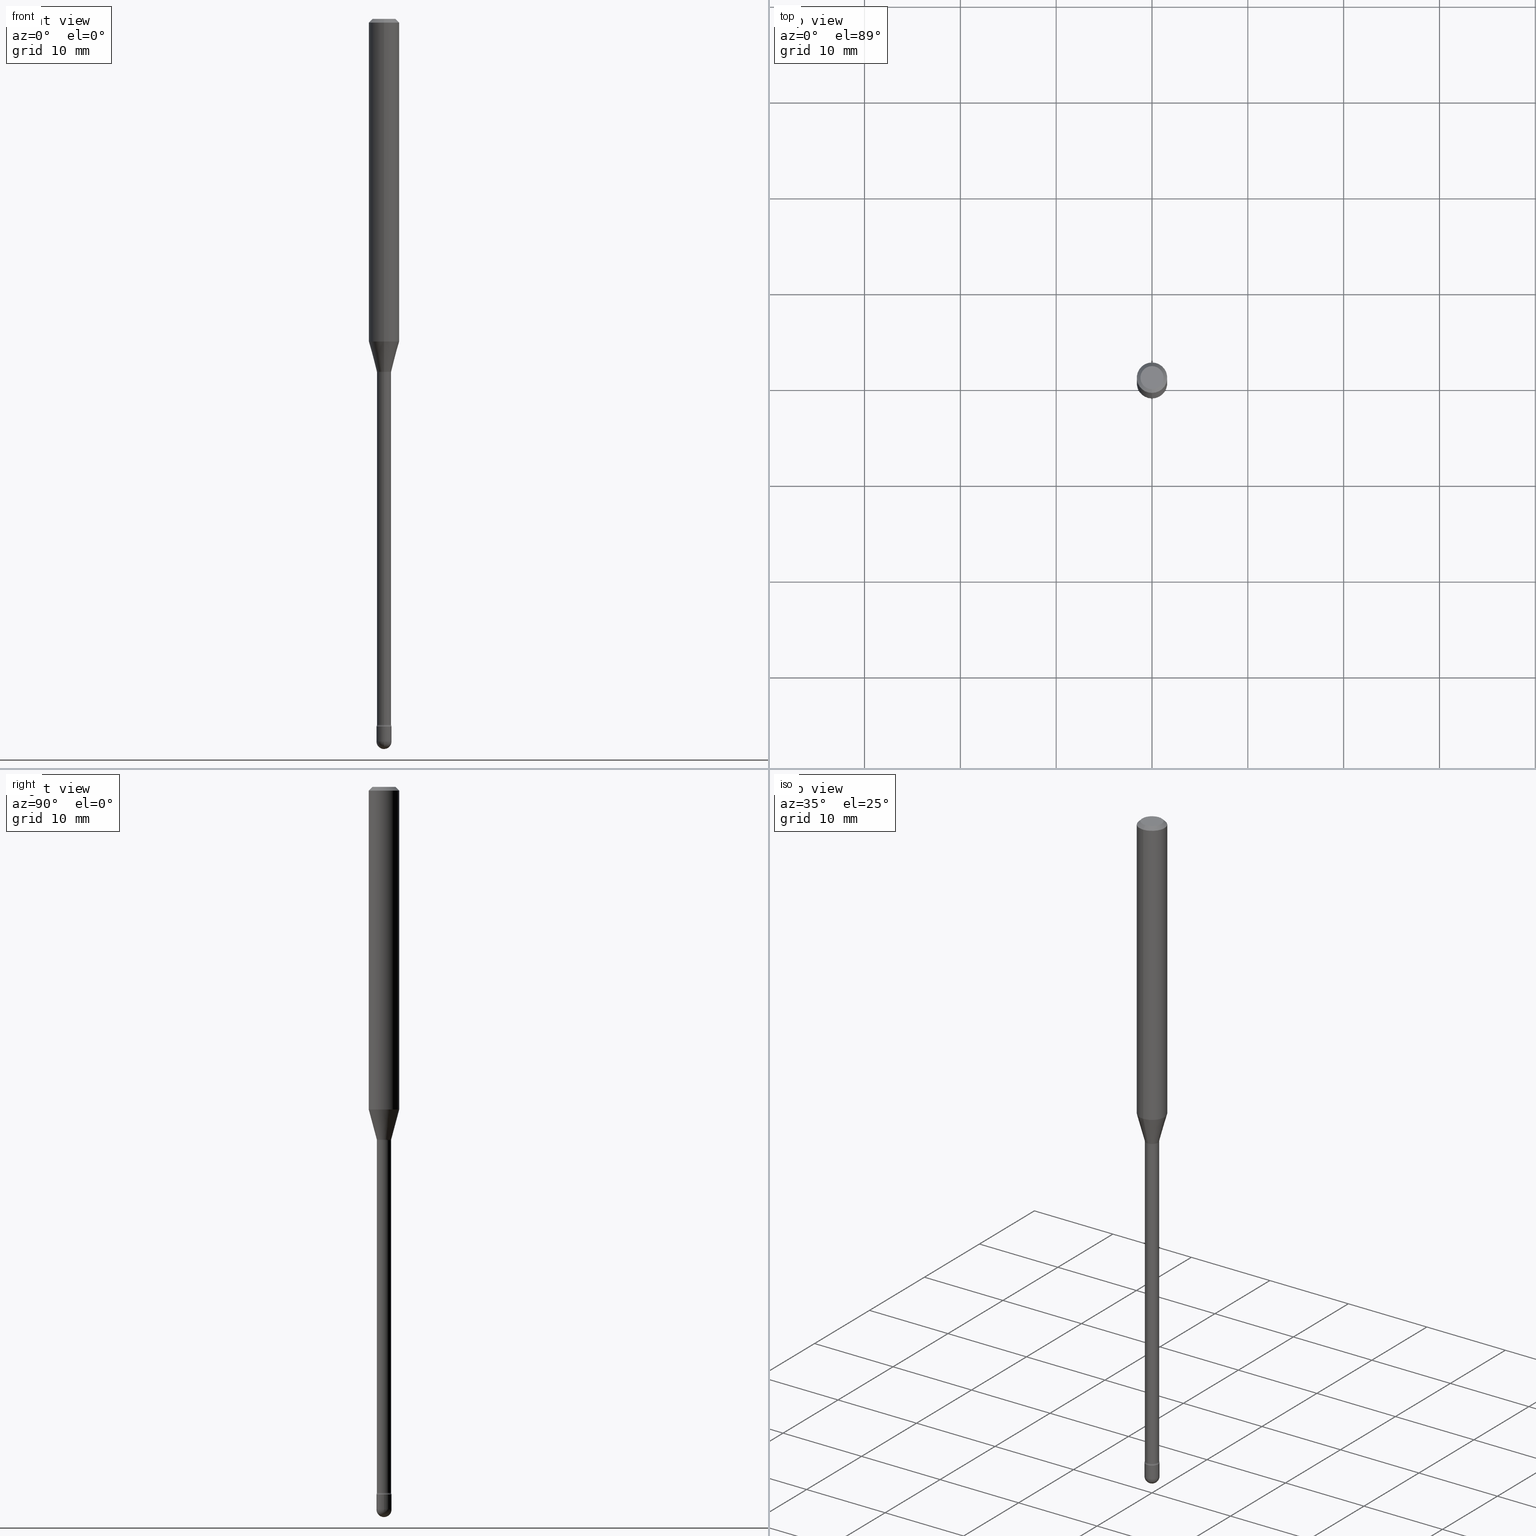
[diagram: canonical four-view strip — front | top / right | iso, engineering-drawing reading convention]
A machine part, canonical four-view strip (front | top / right | iso — engineering-drawing reading convention). The complete STEP part file that produces these views, byte-faithful:
ISO-10303-21;
HEADER;
FILE_DESCRIPTION (( 'STEP AP203' ),
    '1' );
FILE_NAME ('03980.STEP',
    '2024-04-09T21:37:29',
    ( '' ),
    ( '' ),
    'SwSTEP 2.0',
    'SolidWorks 2023',
    '' );
FILE_SCHEMA (( 'CONFIG_CONTROL_DESIGN' ));
ENDSEC;

DATA;
#1 = APPROVAL_DATE_TIME ( #4, #548 ) ;
#2 = CARTESIAN_POINT ( 'NONE',  ( -4.364351673553912750E-16, -0.06250000000000005551, -0.01499999999999986587 ) ) ;
#3 = DIRECTION ( 'NONE',  ( 6.982962677686265922E-15, 1.000000000000000000, -3.483106191921935554E-15 ) ) ;
#4 = DATE_AND_TIME ( #487, #557 ) ;
#5 = EDGE_LOOP ( 'NONE', ( #512, #316, #355, #538 ) ) ;
#6 = VERTEX_POINT ( 'NONE', #543 ) ;
#7 = DIRECTION ( 'NONE',  ( -2.445463065132452416E-29, 3.491489560357349594E-15, 1.000000000000000000 ) ) ;
#8 = AXIS2_PLACEMENT_3D ( 'NONE', #477, #259, #431 ) ;
#9 =( GEOMETRIC_REPRESENTATION_CONTEXT ( 3 ) GLOBAL_UNCERTAINTY_ASSIGNED_CONTEXT ( ( #222 ) ) GLOBAL_UNIT_ASSIGNED_CONTEXT ( ( #141, #185, #266 ) ) REPRESENTATION_CONTEXT ( 'NONE', 'WORKASPACE' ) );
#10 = SHAPE_DEFINITION_REPRESENTATION ( #555, #62 ) ;
#11 = ORIENTED_EDGE ( 'NONE', *, *, #290, .T. ) ;
#12 = FACE_OUTER_BOUND ( 'NONE', #561, .T. ) ;
#13 = ADVANCED_FACE ( 'NONE', ( #546 ), #14, .F. ) ;
#14 = TOROIDAL_SURFACE ( 'NONE', #471, 0.04415000000000000174, 0.01500000000000002547 ) ;
#15 = ORIENTED_EDGE ( 'NONE', *, *, #332, .F. ) ;
#16 = AXIS2_PLACEMENT_3D ( 'NONE', #517, #319, #34 ) ;
#17 = DIRECTION ( 'NONE',  ( -6.982962677686265922E-15, -1.000000000000000000, 3.491489560357349594E-15 ) ) ;
#18 = LOCAL_TIME ( 17, 37, 29.00000000000000000, #491 ) ;
#19 = CARTESIAN_POINT ( 'NONE',  ( -1.169113584055446105E-44, 1.669184350826100908E-30, 4.780733988912460139E-16 ) ) ;
#20 = EDGE_CURVE ( 'NONE', #480, #367, #407, .T. ) ;
#21 = DIRECTION ( 'NONE',  ( -6.982962677686265133E-15, -1.000000000000000000, 0.000000000000000000 ) ) ;
#22 = EDGE_CURVE ( 'NONE', #56, #147, #191, .T. ) ;
#23 = DIRECTION ( 'NONE',  ( -2.445463065132452416E-29, 3.491489560357349988E-15, 1.000000000000000000 ) ) ;
#24 = CIRCLE ( 'NONE', #325, 0.06250000000000000000 ) ;
#25 = EDGE_CURVE ( 'NONE', #443, #56, #116, .T. ) ;
#26 = CARTESIAN_POINT ( 'NONE',  ( -0.03099999999999999978, -1.003770392543553314E-14, -2.907000000000000473 ) ) ;
#27 = CARTESIAN_POINT ( 'NONE',  ( 3.137046178381563759E-16, 0.04414999999999005831, -2.899783525791635341 ) ) ;
#28 = CYLINDRICAL_SURFACE ( 'NONE', #253, 0.02915000000000008210 ) ;
#29 = CARTESIAN_POINT ( 'NONE',  ( 3.241549587665023205E-29, -4.628095474465936860E-15, -1.325536105567578060 ) ) ;
#30 = PERSON_AND_ORGANIZATION_ROLE ( 'classification_officer' ) ;
#31 = CIRCLE ( 'NONE', #143, 0.01500000000000002720 ) ;
#32 = DIRECTION ( 'NONE',  ( -6.982962677686265922E-15, -1.000000000000000000, 3.491489560357349988E-15 ) ) ;
#33 = CC_DESIGN_PERSON_AND_ORGANIZATION_ASSIGNMENT ( #227, #304, ( #40 ) ) ;
#34 = DIRECTION ( 'NONE',  ( -6.982962677686265922E-15, -1.000000000000000000, 3.491489560357350383E-15 ) ) ;
#35 = FACE_OUTER_BOUND ( 'NONE', #441, .T. ) ;
#36 = ORIENTED_EDGE ( 'NONE', *, *, #128, .F. ) ;
#37 = COORDINATED_UNIVERSAL_TIME_OFFSET ( 5, 0, .BEHIND. ) ;
#38 = ORIENTED_EDGE ( 'NONE', *, *, #87, .T. ) ;
#39 = EDGE_CURVE ( 'NONE', #443, #6, #286, .T. ) ;
#40 = PRODUCT_DEFINITION_FORMATION_WITH_SPECIFIED_SOURCE ( 'ANY', '', #63, .NOT_KNOWN. ) ;
#41 = DIRECTION ( 'NONE',  ( 2.445463065132452416E-29, -3.491489560357349594E-15, -1.000000000000000000 ) ) ;
#42 = DIRECTION ( 'NONE',  ( -2.445463065132452416E-29, 3.491489560357349594E-15, 1.000000000000000000 ) ) ;
#43 = PERSON_AND_ORGANIZATION ( #76, #239 ) ;
#44 = DESIGN_CONTEXT ( 'detailed design', #388, 'design' ) ;
#45 = APPLICATION_CONTEXT ( 'configuration controlled 3d designs of mechanical parts and assemblies' ) ;
#46 = ORIENTED_EDGE ( 'NONE', *, *, #375, .T. ) ;
#47 = SPHERICAL_SURFACE ( 'NONE', #68, 0.03099999999999987488 ) ;
#48 = DIRECTION ( 'NONE',  ( 0.000000000000000000, 0.000000000000000000, 1.000000000000000000 ) ) ;
#49 = ORIENTED_EDGE ( 'NONE', *, *, #552, .F. ) ;
#50 = DIRECTION ( 'NONE',  ( 6.982962677686265922E-15, 1.000000000000000000, 0.000000000000000000 ) ) ;
#51 = AXIS2_PLACEMENT_3D ( 'NONE', #92, #436, #179 ) ;
#52 = ORIENTED_EDGE ( 'NONE', *, *, #122, .F. ) ;
#53 = ORIENTED_EDGE ( 'NONE', *, *, #122, .T. ) ;
#54 = LENGTH_MEASURE_WITH_UNIT ( LENGTH_MEASURE( 0.02539999999999999897 ), #172 );
#55 = EDGE_CURVE ( 'NONE', #280, #57, #354, .T. ) ;
#56 = VERTEX_POINT ( 'NONE', #160 ) ;
#57 = VERTEX_POINT ( 'NONE', #502 ) ;
#58 = ORIENTED_EDGE ( 'NONE', *, *, #20, .F. ) ;
#59 = DIRECTION ( 'NONE',  ( -6.982962677686265922E-15, -1.000000000000000000, 0.000000000000000000 ) ) ;
#60 = CARTESIAN_POINT ( 'NONE',  ( 4.440892098500947623E-16, 0.06249999999999535788, -1.325536105567578282 ) ) ;
#61 = AXIS2_PLACEMENT_3D ( 'NONE', #465, #163, #91 ) ;
#62 = ADVANCED_BREP_SHAPE_REPRESENTATION ( '03980', ( #481, #299, #531 ), #9 ) ;
#63 = PRODUCT ( '03980', '03980', '', ( #103 ) ) ;
#64 = DIRECTION ( 'NONE',  ( -6.982962677686265922E-15, -1.000000000000000000, 3.491489560357349594E-15 ) ) ;
#65 = ADVANCED_FACE ( 'NONE', ( #118 ), #114, .F. ) ;
#66 = CARTESIAN_POINT ( 'NONE',  ( 3.550750714246292471E-29, -5.069554812331978969E-15, -1.451974787463811145 ) ) ;
#67 = CARTESIAN_POINT ( 'NONE',  ( 7.108977819580192437E-29, -1.014973625201702565E-14, -2.907000000000000473 ) ) ;
#68 = AXIS2_PLACEMENT_3D ( 'NONE', #224, #444, #145 ) ;
#69 = ORIENTED_EDGE ( 'NONE', *, *, #475, .T. ) ;
#70 = FACE_OUTER_BOUND ( 'NONE', #196, .T. ) ;
#71 = FACE_OUTER_BOUND ( 'NONE', #313, .T. ) ;
#72 = DIRECTION ( 'NONE',  ( -2.445468806185136597E-29, 3.491481338843145583E-15, 1.000000000000000000 ) ) ;
#73 = CYLINDRICAL_SURFACE ( 'NONE', #16, 0.02915000000000008210 ) ;
#74 = DIRECTION ( 'NONE',  ( -7.105427357601001070E-15, -1.000000000000000000, 0.000000000000000000 ) ) ;
#75 = DIRECTION ( 'NONE',  ( -2.445463065132451856E-29, 3.491489560357349988E-15, 1.000000000000000000 ) ) ;
#76 = PERSON ( 'UNSPECIFIED', 'UNSPECIFIED', 'UNSPECIFIED', ('UNSPECIFIED'), ('UNSPECIFIED'), ('UNSPECIFIED') ) ;
#77 = EDGE_CURVE ( 'NONE', #358, #246, #79, .T. ) ;
#78 = FACE_OUTER_BOUND ( 'NONE', #321, .T. ) ;
#79 = CIRCLE ( 'NONE', #401, 0.03099999999999999978 ) ;
#80 = CALENDAR_DATE ( 2024, 9, 4 ) ;
#81 = TOROIDAL_SURFACE ( 'NONE', #8, 0.04415000000000018215, 0.01500000000000001506 ) ;
#82 = APPROVAL_PERSON_ORGANIZATION ( #468, #548, #466 ) ;
#83 = CYLINDRICAL_SURFACE ( 'NONE', #377, 0.03099999999999999978 ) ;
#84 = EDGE_CURVE ( 'NONE', #480, #281, #278, .T. ) ;
#85 = CARTESIAN_POINT ( 'NONE',  ( -2.202682480855579631E-16, -0.03100000000001030404, -2.969000000000001194 ) ) ;
#86 = EDGE_LOOP ( 'NONE', ( #495, #298, #271, #110 ) ) ;
#87 = EDGE_CURVE ( 'NONE', #221, #190, #306, .T. ) ;
#88 = CARTESIAN_POINT ( 'NONE',  ( 2.071232074741406617E-16, 0.02914999999999492650, -1.451974787463811145 ) ) ;
#89 = ORIENTED_EDGE ( 'NONE', *, *, #25, .T. ) ;
#90 = VECTOR ( 'NONE', #420, 39.37007874015748143 ) ;
#91 = DIRECTION ( 'NONE',  ( -6.982962677686266711E-15, -1.000000000000000000, 0.000000000000000000 ) ) ;
#92 = CARTESIAN_POINT ( 'NONE',  ( 3.550750714246292471E-29, -5.069554812331978969E-15, -1.451974787463811145 ) ) ;
#93 = DATE_AND_TIME ( #390, #524 ) ;
#94 = CARTESIAN_POINT ( 'NONE',  ( 3.541256728016026823E-29, -5.055999852422020847E-15, -1.448092501787273223 ) ) ;
#95 = ADVANCED_FACE ( 'NONE', ( #556 ), #275, .T. ) ;
#96 = APPLICATION_PROTOCOL_DEFINITION ( 'international standard', 'config_control_design', 1994, #388 ) ;
#97 = FACE_OUTER_BOUND ( 'NONE', #5, .T. ) ;
#98 = ORIENTED_EDGE ( 'NONE', *, *, #287, .T. ) ;
#99 = EDGE_CURVE ( 'NONE', #6, #478, #380, .T. ) ;
#100 = ORIENTED_EDGE ( 'NONE', *, *, #396, .F. ) ;
#101 = CIRCLE ( 'NONE', #167, 0.03099999999999999978 ) ;
#102 = ORIENTED_EDGE ( 'NONE', *, *, #302, .T. ) ;
#103 = MECHANICAL_CONTEXT ( 'NONE', #45, 'mechanical' ) ;
#104 = EDGE_LOOP ( 'NONE', ( #488, #520, #36, #328 ) ) ;
#105 = VERTEX_POINT ( 'NONE', #245 ) ;
#106 = EDGE_LOOP ( 'NONE', ( #132, #416 ) ) ;
#107 = CARTESIAN_POINT ( 'NONE',  ( 7.260596885563672914E-29, -1.036620809502530155E-14, -2.969000000000001194 ) ) ;
#108 = EDGE_CURVE ( 'NONE', #105, #280, #223, .T. ) ;
#109 = DIRECTION ( 'NONE',  ( 1.000000000000000000, -6.982962677686238312E-15, 0.000000000000000000 ) ) ;
#110 = ORIENTED_EDGE ( 'NONE', *, *, #235, .T. ) ;
#111 = ORIENTED_EDGE ( 'NONE', *, *, #240, .F. ) ;
#112 = FACE_OUTER_BOUND ( 'NONE', #330, .T. ) ;
#113 = EDGE_CURVE ( 'NONE', #367, #480, #175, .T. ) ;
#114 = TOROIDAL_SURFACE ( 'NONE', #522, 0.04415000000000018215, 0.01500000000000001506 ) ;
#115 = CIRCLE ( 'NONE', #421, 0.03099999999999999978 ) ;
#116 = LINE ( 'NONE', #408, #331 ) ;
#117 = LOCAL_TIME ( 17, 37, 29.00000000000000000, #37 ) ;
#118 = FACE_OUTER_BOUND ( 'NONE', #277, .T. ) ;
#119 = DIRECTION ( 'NONE',  ( 2.445463065132451856E-29, -3.491489560357349988E-15, -1.000000000000000000 ) ) ;
#120 = CARTESIAN_POINT ( 'NONE',  ( 2.023511110287819099E-45, -2.889129656123721198E-31, -8.274664154962072585E-17 ) ) ;
#121 = AXIS2_PLACEMENT_3D ( 'NONE', #285, #554, #64 ) ;
#122 = EDGE_CURVE ( 'NONE', #507, #190, #303, .T. ) ;
#123 = CARTESIAN_POINT ( 'NONE',  ( 0.03099999999999999978, -1.036620809502529840E-14, -2.907000000000000473 ) ) ;
#124 = DIRECTION ( 'NONE',  ( 1.000000000000000000, -7.105427357601001070E-15, 4.926315609226592758E-29 ) ) ;
#125 = DIRECTION ( 'NONE',  ( 6.982962677686265922E-15, 1.000000000000000000, -3.483106191921935554E-15 ) ) ;
#126 = SECURITY_CLASSIFICATION_LEVEL ( 'unclassified' ) ;
#127 = DATE_AND_TIME ( #352, #371 ) ;
#128 = EDGE_CURVE ( 'NONE', #56, #478, #294, .T. ) ;
#129 = CARTESIAN_POINT ( 'NONE',  ( 3.316907271900976096E-16, 0.04749999999999999362, 3.181762455383862016E-17 ) ) ;
#130 = VECTOR ( 'NONE', #297, 39.37007874015748143 ) ;
#131 = CIRCLE ( 'NONE', #347, 0.01500000000000002720 ) ;
#132 = ORIENTED_EDGE ( 'NONE', *, *, #20, .T. ) ;
#133 = PERSON_AND_ORGANIZATION_ROLE ( 'creator' ) ;
#134 = DIRECTION ( 'NONE',  ( -2.445468806185136877E-29, 3.491481338843145188E-15, 1.000000000000000000 ) ) ;
#135 = ADVANCED_FACE ( 'NONE', ( #515 ), #151, .T. ) ;
#136 = APPROVAL_STATUS ( 'not_yet_approved' ) ;
#137 = CC_DESIGN_PERSON_AND_ORGANIZATION_ASSIGNMENT ( #174, #133, ( #537 ) ) ;
#138 = DIRECTION ( 'NONE',  ( -2.445463065132452416E-29, 3.491489560357349988E-15, 1.000000000000000000 ) ) ;
#139 = COORDINATED_UNIVERSAL_TIME_OFFSET ( 5, 0, .BEHIND. ) ;
#140 = CARTESIAN_POINT ( 'NONE',  ( 0.000000000000000000, 0.000000000000000000, 0.000000000000000000 ) ) ;
#141 =( CONVERSION_BASED_UNIT ( 'INCH', #54 ) LENGTH_UNIT ( ) NAMED_UNIT ( #564 ) );
#142 = ADVANCED_FACE ( 'NONE', ( #71 ), #210, .T. ) ;
#143 = AXIS2_PLACEMENT_3D ( 'NONE', #168, #124, #219 ) ;
#144 = FACE_OUTER_BOUND ( 'NONE', #395, .T. ) ;
#145 = DIRECTION ( 'NONE',  ( 6.982962677686265922E-15, 1.000000000000000000, 0.000000000000000000 ) ) ;
#146 = PERSON_AND_ORGANIZATION ( #76, #239 ) ;
#147 = VERTEX_POINT ( 'NONE', #2 ) ;
#148 = CARTESIAN_POINT ( 'NONE',  ( -3.773273898774340269E-16, -0.04749999999999999362, 8.309911256735337198E-17 ) ) ;
#149 = APPLICATION_PROTOCOL_DEFINITION ( 'international standard', 'config_control_design', 1994, #45 ) ;
#150 = DIRECTION ( 'NONE',  ( -2.445463065132452416E-29, 3.491489560357349594E-15, 1.000000000000000000 ) ) ;
#151 = CONICAL_SURFACE ( 'NONE', #457, 0.02966111260566397720, 0.2617993877991495744 ) ;
#152 = EDGE_LOOP ( 'NONE', ( #236, #214, #489, #333 ) ) ;
#153 = CIRCLE ( 'NONE', #61, 0.01500000000000001159 ) ;
#154 = APPROVAL_PERSON_ORGANIZATION ( #442, #429, #392 ) ;
#155 = EDGE_LOOP ( 'NONE', ( #257, #156, #362, #52, #11 ) ) ;
#156 = ORIENTED_EDGE ( 'NONE', *, *, #332, .T. ) ;
#157 = DIRECTION ( 'NONE',  ( -2.445463065132452416E-29, 3.491489560357349594E-15, 1.000000000000000000 ) ) ;
#158 = DIRECTION ( 'NONE',  ( -6.982962677686266711E-15, -1.000000000000000000, 3.491489560357349988E-15 ) ) ;
#159 = CONICAL_SURFACE ( 'NONE', #565, 0.02966111260566397720, 0.2617993877991495744 ) ;
#160 = CARTESIAN_POINT ( 'NONE',  ( -4.364351673553594247E-16, -0.06250000000000464906, -1.325536105567577838 ) ) ;
#161 = DIRECTION ( 'NONE',  ( 1.000000000000000000, -6.982962677686238312E-15, 0.000000000000000000 ) ) ;
#162 = EDGE_CURVE ( 'NONE', #105, #428, #540, .T. ) ;
#163 = DIRECTION ( 'NONE',  ( -1.000000000000000000, 6.982962677686265922E-15, -4.883557194083112340E-29 ) ) ;
#164 = ORIENTED_EDGE ( 'NONE', *, *, #552, .T. ) ;
#165 = DIRECTION ( 'NONE',  ( -2.445463065132452416E-29, 3.491489560357349988E-15, 1.000000000000000000 ) ) ;
#166 = AXIS2_PLACEMENT_3D ( 'NONE', #67, #376, #435 ) ;
#167 = AXIS2_PLACEMENT_3D ( 'NONE', #525, #312, #426 ) ;
#168 = CARTESIAN_POINT ( 'NONE',  ( 3.137046178381196446E-16, 0.04414999999999492941, -1.451974787463811367 ) ) ;
#169 = DIRECTION ( 'NONE',  ( -6.982962677686265133E-15, -1.000000000000000000, 0.000000000000000000 ) ) ;
#170 = CARTESIAN_POINT ( 'NONE',  ( 7.108977819580192437E-29, -1.014973625201702565E-14, -2.907000000000000473 ) ) ;
#171 = FACE_OUTER_BOUND ( 'NONE', #106, .T. ) ;
#172 =( LENGTH_UNIT ( ) NAMED_UNIT ( * ) SI_UNIT ( $, .METRE. ) );
#173 = ADVANCED_FACE ( 'NONE', ( #78 ), #476, .F. ) ;
#174 = PERSON_AND_ORGANIZATION ( #76, #239 ) ;
#175 = CIRCLE ( 'NONE', #496, 0.04749999999999999362 ) ;
#176 = AXIS2_PLACEMENT_3D ( 'NONE', #19, #198, #267 ) ;
#177 = DIRECTION ( 'NONE',  ( -1.000000000000000000, 6.982962677686265922E-15, -4.883557194083112340E-29 ) ) ;
#178 = DIRECTION ( 'NONE',  ( -2.445468806185136877E-29, 3.491481338843145188E-15, 1.000000000000000000 ) ) ;
#179 = DIRECTION ( 'NONE',  ( -6.982962677686266711E-15, -1.000000000000000000, 0.000000000000000000 ) ) ;
#180 = ORIENTED_EDGE ( 'NONE', *, *, #204, .F. ) ;
#181 = CC_DESIGN_DATE_AND_TIME_ASSIGNMENT ( #530, #438, ( #537 ) ) ;
#182 = AXIS2_PLACEMENT_3D ( 'NONE', #202, #334, #344 ) ;
#183 = ORIENTED_EDGE ( 'NONE', *, *, #108, .F. ) ;
#184 = LINE ( 'NONE', #393, #433 ) ;
#185 =( NAMED_UNIT ( * ) PLANE_ANGLE_UNIT ( ) SI_UNIT ( $, .RADIAN. ) );
#186 = ADVANCED_FACE ( 'NONE', ( #553 ), #509, .T. ) ;
#187 = ORIENTED_EDGE ( 'NONE', *, *, #547, .T. ) ;
#188 = DIRECTION ( 'NONE',  ( -6.982962677686265133E-15, -1.000000000000000000, 0.000000000000000000 ) ) ;
#189 = ORIENTED_EDGE ( 'NONE', *, *, #99, .F. ) ;
#190 = VERTEX_POINT ( 'NONE', #123 ) ;
#191 = LINE ( 'NONE', #368, #217 ) ;
#192 = AXIS2_PLACEMENT_3D ( 'NONE', #549, #197, #158 ) ;
#193 = ORIENTED_EDGE ( 'NONE', *, *, #162, .T. ) ;
#194 = AXIS2_PLACEMENT_3D ( 'NONE', #463, #72, #409 ) ;
#195 = AXIS2_PLACEMENT_3D ( 'NONE', #454, #201, #470 ) ;
#196 = EDGE_LOOP ( 'NONE', ( #203, #366, #225, #357 ) ) ;
#197 = DIRECTION ( 'NONE',  ( -2.445463065132452416E-29, 3.491489560357349594E-15, 1.000000000000000000 ) ) ;
#198 = DIRECTION ( 'NONE',  ( -2.445463065132452416E-29, 3.491489560357349594E-15, 1.000000000000000000 ) ) ;
#199 = DIRECTION ( 'NONE',  ( -2.445463065132452416E-29, 3.491489560357349594E-15, 1.000000000000000000 ) ) ;
#200 = ADVANCED_FACE ( 'NONE', ( #171 ), #301, .F. ) ;
#201 = DIRECTION ( 'NONE',  ( -2.445463065132452416E-29, 3.491489560357349594E-15, 1.000000000000000000 ) ) ;
#202 = CARTESIAN_POINT ( 'NONE',  ( 7.108961130340038725E-29, -1.014976015195881761E-14, -2.907000000000000473 ) ) ;
#203 = ORIENTED_EDGE ( 'NONE', *, *, #128, .T. ) ;
#204 = EDGE_CURVE ( 'NONE', #283, #469, #153, .T. ) ;
#205 = DIRECTION ( 'NONE',  ( 1.000000000000000000, -6.982962677686266711E-15, 4.876176775795935232E-29 ) ) ;
#206 = DIRECTION ( 'NONE',  ( -2.445463065132452416E-29, 3.491489560357349594E-15, 1.000000000000000000 ) ) ;
#207 = CARTESIAN_POINT ( 'NONE',  ( 0.03099999999999999978, -2.164718430082742572E-16, 1.511614800496739984E-30 ) ) ;
#208 = VECTOR ( 'NONE', #134, 39.37007874015748143 ) ;
#209 = ORIENTED_EDGE ( 'NONE', *, *, #375, .F. ) ;
#210 = SPHERICAL_SURFACE ( 'NONE', #386, 0.03099999999999987488 ) ;
#211 = APPROVAL_ROLE ( '' ) ;
#212 = EDGE_LOOP ( 'NONE', ( #268, #216, #322, #327 ) ) ;
#213 = LINE ( 'NONE', #343, #208 ) ;
#214 = ORIENTED_EDGE ( 'NONE', *, *, #39, .F. ) ;
#215 = CARTESIAN_POINT ( 'NONE',  ( 7.108961130340038725E-29, -1.014976015195881761E-14, -2.907000000000000473 ) ) ;
#216 = ORIENTED_EDGE ( 'NONE', *, *, #108, .T. ) ;
#217 = VECTOR ( 'NONE', #23, 39.37007874015748143 ) ;
#218 = AXIS2_PLACEMENT_3D ( 'NONE', #353, #399, #356 ) ;
#219 = DIRECTION ( 'NONE',  ( 7.105427357600997914E-15, 1.000000000000000000, 0.000000000000000000 ) ) ;
#220 = EDGE_CURVE ( 'NONE', #367, #147, #456, .T. ) ;
#221 = VERTEX_POINT ( 'NONE', #26 ) ;
#222 = UNCERTAINTY_MEASURE_WITH_UNIT (LENGTH_MEASURE( 1.000000000000000082E-05 ), #141, 'distance_accuracy_value', 'NONE');
#223 = LINE ( 'NONE', #391, #130 ) ;
#224 = CARTESIAN_POINT ( 'NONE',  ( 7.260596885563671793E-29, -1.036620809502529998E-14, -2.969000000000000306 ) ) ;
#225 = ORIENTED_EDGE ( 'NONE', *, *, #446, .F. ) ;
#226 = DIRECTION ( 'NONE',  ( -6.982962677686265922E-15, -1.000000000000000000, 0.000000000000000000 ) ) ;
#227 = PERSON_AND_ORGANIZATION ( #76, #239 ) ;
#228 = ORIENTED_EDGE ( 'NONE', *, *, #84, .T. ) ;
#229 = CLOSED_SHELL ( 'NONE', ( #13, #258, #65, #361, #518, #135, #424, #482, #95, #200, #173, #340, #450, #345 ) ) ;
#230 = CIRCLE ( 'NONE', #370, 0.02915000000000016536 ) ;
#231 = DIRECTION ( 'NONE',  ( -6.982962677686265922E-15, -1.000000000000000000, 4.370956789862821150E-15 ) ) ;
#232 = ORIENTED_EDGE ( 'NONE', *, *, #475, .F. ) ;
#233 = CARTESIAN_POINT ( 'NONE',  ( 7.091313509203002417E-29, -1.012456390759772357E-14, -2.899783525791635341 ) ) ;
#234 = EDGE_LOOP ( 'NONE', ( #15, #458, #69, #53, #532 ) ) ;
#235 = EDGE_CURVE ( 'NONE', #469, #428, #308, .T. ) ;
#236 = ORIENTED_EDGE ( 'NONE', *, *, #287, .F. ) ;
#237 = CYLINDRICAL_SURFACE ( 'NONE', #176, 0.06250000000000000000 ) ;
#238 = CIRCLE ( 'NONE', #288, 0.06250000000000000000 ) ;
#239 = ORGANIZATION ( 'UNSPECIFIED', 'UNSPECIFIED', '' ) ;
#240 = EDGE_CURVE ( 'NONE', #428, #469, #505, .T. ) ;
#241 = CARTESIAN_POINT ( 'NONE',  ( 7.260596885563672914E-29, -1.036620809502530155E-14, -2.969000000000001194 ) ) ;
#242 = VECTOR ( 'NONE', #178, 39.37007874015748143 ) ;
#243 = CIRCLE ( 'NONE', #261, 0.02915000000000016536 ) ;
#244 = CC_DESIGN_SECURITY_CLASSIFICATION ( #461, ( #40 ) ) ;
#245 = CARTESIAN_POINT ( 'NONE',  ( 2.136957277799217274E-16, 0.02914999999999004152, -2.899783525791635341 ) ) ;
#246 = VERTEX_POINT ( 'NONE', #85 ) ;
#247 = ADVANCED_FACE ( 'NONE', ( #526 ), #83, .T. ) ;
#248 = DIRECTION ( 'NONE',  ( -6.982962677686265922E-15, -1.000000000000000000, 4.370956789862821150E-15 ) ) ;
#249 = ORIENTED_EDGE ( 'NONE', *, *, #77, .F. ) ;
#250 = CARTESIAN_POINT ( 'NONE',  ( -4.287811248607203282E-16, -0.06250000000000005551, -0.01499999999999986587 ) ) ;
#251 = PLANE ( 'NONE',  #452 ) ;
#252 = DIRECTION ( 'NONE',  ( 7.105427357601001859E-15, 1.000000000000000000, 0.000000000000000000 ) ) ;
#253 = AXIS2_PLACEMENT_3D ( 'NONE', #254, #206, #474 ) ;
#254 = CARTESIAN_POINT ( 'NONE',  ( -1.169113584055446105E-44, 1.669184350826100908E-30, 4.780733988912460139E-16 ) ) ;
#255 = CC_DESIGN_PERSON_AND_ORGANIZATION_ASSIGNMENT ( #146, #318, ( #40 ) ) ;
#256 = DIRECTION ( 'NONE',  ( -2.445463065132452416E-29, 3.491489560357349594E-15, 1.000000000000000000 ) ) ;
#257 = ORIENTED_EDGE ( 'NONE', *, *, #511, .T. ) ;
#258 = ADVANCED_FACE ( 'NONE', ( #419 ), #28, .T. ) ;
#259 = DIRECTION ( 'NONE',  ( -2.445463065132452416E-29, 3.491489560357349594E-15, 1.000000000000000000 ) ) ;
#260 = PERSON_AND_ORGANIZATION ( #76, #239 ) ;
#261 = AXIS2_PLACEMENT_3D ( 'NONE', #233, #42, #226 ) ;
#262 = DIRECTION ( 'NONE',  ( 1.839019923739595582E-15, 0.2588190451025242922, 0.9659258262890673130 ) ) ;
#263 = CARTESIAN_POINT ( 'NONE',  ( -0.03099999999999999978, -1.003770392543553314E-14, -2.969000000000001194 ) ) ;
#264 = APPROVAL_DATE_TIME ( #93, #542 ) ;
#265 = CARTESIAN_POINT ( 'NONE',  ( 7.091313509203002417E-29, -1.012456390759772357E-14, -2.899783525791635341 ) ) ;
#266 =( NAMED_UNIT ( * ) SI_UNIT ( $, .STERADIAN. ) SOLID_ANGLE_UNIT ( ) );
#267 = DIRECTION ( 'NONE',  ( -6.982962677686265922E-15, -1.000000000000000000, 3.491489560357349594E-15 ) ) ;
#268 = ORIENTED_EDGE ( 'NONE', *, *, #455, .T. ) ;
#269 = DIRECTION ( 'NONE',  ( -6.982962677686265922E-15, -1.000000000000000000, 3.483106191921935554E-15 ) ) ;
#270 = DATE_TIME_ROLE ( 'classification_date' ) ;
#271 = ORIENTED_EDGE ( 'NONE', *, *, #204, .T. ) ;
#272 = ORIENTED_EDGE ( 'NONE', *, *, #220, .F. ) ;
#273 = CARTESIAN_POINT ( 'NONE',  ( 7.260596885563671793E-29, -1.036620809502529998E-14, -2.969000000000000306 ) ) ;
#274 = EDGE_CURVE ( 'NONE', #443, #57, #131, .T. ) ;
#275 = CONICAL_SURFACE ( 'NONE', #346, 0.06250000000000000000, 0.7853981633974483900 ) ;
#276 = CIRCLE ( 'NONE', #51, 0.02915000000000000230 ) ;
#277 = EDGE_LOOP ( 'NONE', ( #100, #193, #398, #180 ) ) ;
#278 = LINE ( 'NONE', #449, #337 ) ;
#279 = CARTESIAN_POINT ( 'NONE',  ( 3.840629472727447874E-16, 0.04749999999999999362, -2.485923956665948360E-16 ) ) ;
#280 = VERTEX_POINT ( 'NONE', #88 ) ;
#281 = VERTEX_POINT ( 'NONE', #349 ) ;
#282 = DIRECTION ( 'NONE',  ( -2.445468806185136597E-29, 3.491481338843145583E-15, 1.000000000000000000 ) ) ;
#283 = VERTEX_POINT ( 'NONE', #464 ) ;
#284 = DIRECTION ( 'NONE',  ( -2.445468806185136597E-29, 3.491481338843145583E-15, 1.000000000000000000 ) ) ;
#285 = CARTESIAN_POINT ( 'NONE',  ( -1.169113584055446105E-44, 1.669184350826100908E-30, 4.780733988912460139E-16 ) ) ;
#286 = CIRCLE ( 'NONE', #563, 0.02966111260566397720 ) ;
#287 = EDGE_CURVE ( 'NONE', #6, #280, #31, .T. ) ;
#288 = AXIS2_PLACEMENT_3D ( 'NONE', #536, #527, #269 ) ;
#289 = PRODUCT_RELATED_PRODUCT_CATEGORY ( 'detail', '', ( #63 ) ) ;
#290 = EDGE_CURVE ( 'NONE', #507, #418, #101, .T. ) ;
#291 = CARTESIAN_POINT ( 'NONE',  ( 7.091330157012996876E-29, -1.012454006698627704E-14, -2.899783525791635341 ) ) ;
#292 = DIRECTION ( 'NONE',  ( 6.982962677686265922E-15, 1.000000000000000000, -3.491489560357349988E-15 ) ) ;
#293 = EDGE_LOOP ( 'NONE', ( #49, #98, #447, #310 ) ) ;
#294 = CIRCLE ( 'NONE', #324, 0.06250000000000000000 ) ;
#295 = AXIS2_PLACEMENT_3D ( 'NONE', #241, #300, #413 ) ;
#296 = CC_DESIGN_APPROVAL ( #548, ( #40 ) ) ;
#297 = DIRECTION ( 'NONE',  ( -2.445463065132452416E-29, 3.491489560357349988E-15, 1.000000000000000000 ) ) ;
#298 = ORIENTED_EDGE ( 'NONE', *, *, #455, .F. ) ;
#299 = MANIFOLD_SOLID_BREP ( 'Body-Move/Copy2[2]', #229 ) ;
#300 = DIRECTION ( 'NONE',  ( -2.445468806185136597E-29, 3.491481338843145583E-15, 1.000000000000000000 ) ) ;
#301 = PLANE ( 'NONE',  #338 ) ;
#302 = EDGE_CURVE ( 'NONE', #535, #246, #486, .T. ) ;
#303 = LINE ( 'NONE', #207, #242 ) ;
#304 = PERSON_AND_ORGANIZATION_ROLE ( 'creator' ) ;
#305 = CARTESIAN_POINT ( 'NONE',  ( 0.000000000000000000, 0.000000000000000000, 0.000000000000000000 ) ) ;
#306 = CIRCLE ( 'NONE', #166, 0.03099999999999999978 ) ;
#307 = DIRECTION ( 'NONE',  ( 6.982962677686265922E-15, 1.000000000000000000, 0.000000000000000000 ) ) ;
#308 = CIRCLE ( 'NONE', #182, 0.03099999999999999978 ) ;
#309 = ORIENTED_EDGE ( 'NONE', *, *, #382, .T. ) ;
#310 = ORIENTED_EDGE ( 'NONE', *, *, #274, .F. ) ;
#311 = ADVANCED_FACE ( 'NONE', ( #35 ), #251, .T. ) ;
#312 = DIRECTION ( 'NONE',  ( -2.445468806185136597E-29, 3.491481338843145583E-15, 1.000000000000000000 ) ) ;
#313 = EDGE_LOOP ( 'NONE', ( #209, #102, #249, #329 ) ) ;
#314 = CARTESIAN_POINT ( 'NONE',  ( 3.550759050110043662E-29, -5.069542874900639233E-15, -1.451974787463811145 ) ) ;
#315 = AXIS2_PLACEMENT_3D ( 'NONE', #320, #317, #3 ) ;
#316 = ORIENTED_EDGE ( 'NONE', *, *, #494, .T. ) ;
#317 = DIRECTION ( 'NONE',  ( 2.445463065132452416E-29, -3.491489560357349594E-15, -1.000000000000000000 ) ) ;
#318 = PERSON_AND_ORGANIZATION_ROLE ( 'design_supplier' ) ;
#319 = DIRECTION ( 'NONE',  ( -2.445463065132452416E-29, 3.491489560357349594E-15, 1.000000000000000000 ) ) ;
#320 = CARTESIAN_POINT ( 'NONE',  ( 3.668194597698698645E-31, -5.237234340536053530E-17, -0.01500000000000008271 ) ) ;
#321 = EDGE_LOOP ( 'NONE', ( #539, #111 ) ) ;
#322 = ORIENTED_EDGE ( 'NONE', *, *, #440, .F. ) ;
#323 = CC_DESIGN_DATE_AND_TIME_ASSIGNMENT ( #425, #270, ( #461 ) ) ;
#324 = AXIS2_PLACEMENT_3D ( 'NONE', #29, #462, #248 ) ;
#325 = AXIS2_PLACEMENT_3D ( 'NONE', #397, #150, #231 ) ;
#326 = LINE ( 'NONE', #500, #387 ) ;
#327 = ORIENTED_EDGE ( 'NONE', *, *, #437, .F. ) ;
#328 = ORIENTED_EDGE ( 'NONE', *, *, #25, .F. ) ;
#329 = ORIENTED_EDGE ( 'NONE', *, *, #511, .F. ) ;
#330 = EDGE_LOOP ( 'NONE', ( #183, #501, #360, #365 ) ) ;
#331 = VECTOR ( 'NONE', #545, 39.37007874015748854 ) ;
#332 = EDGE_CURVE ( 'NONE', #358, #221, #213, .T. ) ;
#333 = ORIENTED_EDGE ( 'NONE', *, *, #440, .T. ) ;
#334 = DIRECTION ( 'NONE',  ( -2.445463065132452416E-29, 3.491489560357349594E-15, 1.000000000000000000 ) ) ;
#335 = ORIENTED_EDGE ( 'NONE', *, *, #113, .F. ) ;
#336 = CARTESIAN_POINT ( 'NONE',  ( 7.337731926303638431E-29, -1.047254581399075986E-14, -3.000000000000000444 ) ) ;
#337 = VECTOR ( 'NONE', #467, 39.37007874015748143 ) ;
#338 = AXIS2_PLACEMENT_3D ( 'NONE', #129, #119, #292 ) ;
#339 = CARTESIAN_POINT ( 'NONE',  ( 2.164718430083453286E-16, 0.03099999999998984818, -2.907000000000000473 ) ) ;
#340 = ADVANCED_FACE ( 'NONE', ( #378 ), #81, .F. ) ;
#341 = DIRECTION ( 'NONE',  ( -2.445468806185136597E-29, 3.491481338843145583E-15, 1.000000000000000000 ) ) ;
#342 = DIRECTION ( 'NONE',  ( -6.982962677686266711E-15, -1.000000000000000000, 3.491489560357349988E-15 ) ) ;
#343 = CARTESIAN_POINT ( 'NONE',  ( -0.03099999999999999978, 2.202682480856310560E-16, -1.524869877979020612E-30 ) ) ;
#344 = DIRECTION ( 'NONE',  ( -6.982962677686265922E-15, -1.000000000000000000, 0.000000000000000000 ) ) ;
#345 = ADVANCED_FACE ( 'NONE', ( #519 ), #499, .F. ) ;
#346 = AXIS2_PLACEMENT_3D ( 'NONE', #510, #41, #125 ) ;
#347 = AXIS2_PLACEMENT_3D ( 'NONE', #350, #177, #383 ) ;
#348 = CC_DESIGN_APPROVAL ( #542, ( #461 ) ) ;
#349 = CARTESIAN_POINT ( 'NONE',  ( 4.440892098500951567E-16, 0.06249999999999995143, -0.01500000000000030129 ) ) ;
#350 = CARTESIAN_POINT ( 'NONE',  ( -3.082978022198131742E-16, -0.04415000000000507407, -1.451974787463810923 ) ) ;
#351 = APPROVAL_STATUS ( 'not_yet_approved' ) ;
#352 = CALENDAR_DATE ( 2024, 9, 4 ) ;
#353 = CARTESIAN_POINT ( 'NONE',  ( 3.668194597698698645E-31, -5.237234340536053530E-17, -0.01500000000000008271 ) ) ;
#354 = CIRCLE ( 'NONE', #412, 0.02915000000000000230 ) ;
#355 = ORIENTED_EDGE ( 'NONE', *, *, #22, .T. ) ;
#356 = DIRECTION ( 'NONE',  ( -6.982962677686265922E-15, -1.000000000000000000, 3.483106191921935554E-15 ) ) ;
#357 = ORIENTED_EDGE ( 'NONE', *, *, #22, .F. ) ;
#358 = VERTEX_POINT ( 'NONE', #263 ) ;
#359 = CARTESIAN_POINT ( 'NONE',  ( 2.202682480857021521E-16, 0.03099999999998985165, -2.907000000000000473 ) ) ;
#360 = ORIENTED_EDGE ( 'NONE', *, *, #437, .T. ) ;
#361 = ADVANCED_FACE ( 'NONE', ( #144 ), #445, .T. ) ;
#362 = ORIENTED_EDGE ( 'NONE', *, *, #547, .F. ) ;
#363 = AXIS2_PLACEMENT_3D ( 'NONE', #27, #417, #252 ) ;
#364 = CIRCLE ( 'NONE', #194, 0.03099999999999999978 ) ;
#365 = ORIENTED_EDGE ( 'NONE', *, *, #55, .F. ) ;
#366 = ORIENTED_EDGE ( 'NONE', *, *, #498, .T. ) ;
#367 = VERTEX_POINT ( 'NONE', #148 ) ;
#368 = CARTESIAN_POINT ( 'NONE',  ( -4.364351673553916201E-16, -0.06250000000000000000, 6.962914964135804129E-16 ) ) ;
#369 = ADVANCED_FACE ( 'NONE', ( #493 ), #47, .T. ) ;
#370 = AXIS2_PLACEMENT_3D ( 'NONE', #265, #451, #59 ) ;
#371 = LOCAL_TIME ( 17, 37, 29.00000000000000000, #483 ) ;
#372 = DIRECTION ( 'NONE',  ( -6.982962677686265922E-15, -1.000000000000000000, 3.491489560357349988E-15 ) ) ;
#373 = CARTESIAN_POINT ( 'NONE',  ( 2.107548809652041607E-16, 0.02966111260565892221, -1.448092501787273223 ) ) ;
#374 = CYLINDRICAL_SURFACE ( 'NONE', #121, 0.06250000000000000000 ) ;
#375 = EDGE_CURVE ( 'NONE', #535, #418, #529, .T. ) ;
#376 = DIRECTION ( 'NONE',  ( -2.445468806185136597E-29, 3.491481338843145583E-15, 1.000000000000000000 ) ) ;
#377 = AXIS2_PLACEMENT_3D ( 'NONE', #305, #341, #562 ) ;
#378 = FACE_OUTER_BOUND ( 'NONE', #86, .T. ) ;
#379 = APPROVAL_PERSON_ORGANIZATION ( #394, #542, #211 ) ;
#380 = LINE ( 'NONE', #373, #485 ) ;
#381 = CARTESIAN_POINT ( 'NONE',  ( 7.260596885563671793E-29, -1.036620809502529998E-14, -2.969000000000000306 ) ) ;
#382 = EDGE_CURVE ( 'NONE', #281, #147, #238, .T. ) ;
#383 = DIRECTION ( 'NONE',  ( -6.982962677686263555E-15, -1.000000000000000000, 0.000000000000000000 ) ) ;
#384 = CALENDAR_DATE ( 2024, 9, 4 ) ;
#385 = DIRECTION ( 'NONE',  ( -6.982962677686265922E-15, -1.000000000000000000, 0.000000000000000000 ) ) ;
#386 = AXIS2_PLACEMENT_3D ( 'NONE', #381, #423, #307 ) ;
#387 = VECTOR ( 'NONE', #165, 39.37007874015748143 ) ;
#388 = APPLICATION_CONTEXT ( 'configuration controlled 3d designs of mechanical parts and assemblies' ) ;
#389 = CARTESIAN_POINT ( 'NONE',  ( 7.260596885563671793E-29, -1.036620809502529998E-14, -2.969000000000000306 ) ) ;
#390 = CALENDAR_DATE ( 2024, 9, 4 ) ;
#391 = CARTESIAN_POINT ( 'NONE',  ( 2.071232074740697629E-16, 0.02915000000000008210, 3.762964782068289992E-16 ) ) ;
#392 = APPROVAL_ROLE ( '' ) ;
#393 = CARTESIAN_POINT ( 'NONE',  ( -2.035533620545552294E-16, -0.02915000000000008210, 5.798503195756631272E-16 ) ) ;
#394 = PERSON_AND_ORGANIZATION ( #76, #239 ) ;
#395 = EDGE_LOOP ( 'NONE', ( #335, #427, #430, #544 ) ) ;
#396 = EDGE_CURVE ( 'NONE', #105, #283, #243, .T. ) ;
#397 = CARTESIAN_POINT ( 'NONE',  ( 3.241549587665023205E-29, -4.628095474465936860E-15, -1.325536105567578060 ) ) ;
#398 = ORIENTED_EDGE ( 'NONE', *, *, #240, .T. ) ;
#399 = DIRECTION ( 'NONE',  ( -2.445463065132452416E-29, 3.491489560357349594E-15, 1.000000000000000000 ) ) ;
#400 = COORDINATED_UNIVERSAL_TIME_OFFSET ( 5, 0, .BEHIND. ) ;
#401 = AXIS2_PLACEMENT_3D ( 'NONE', #551, #284, #161 ) ;
#402 = EDGE_LOOP ( 'NONE', ( #492, #46, #448, #232 ) ) ;
#403 = CARTESIAN_POINT ( 'NONE',  ( 2.164718430083464133E-16, 0.03099999999998956715, -2.969000000000001194 ) ) ;
#404 = EDGE_LOOP ( 'NONE', ( #272, #58, #228, #309 ) ) ;
#405 = CARTESIAN_POINT ( 'NONE',  ( -2.164718430082031364E-16, -0.03100000000001014791, -2.907000000000000473 ) ) ;
#406 = DIRECTION ( 'NONE',  ( -2.445463065132452416E-29, 3.491489560357349594E-15, 1.000000000000000000 ) ) ;
#407 = CIRCLE ( 'NONE', #192, 0.04749999999999999362 ) ;
#408 = CARTESIAN_POINT ( 'NONE',  ( -2.071224423039657282E-16, -0.02966111260566903218, -1.448092501787273223 ) ) ;
#409 = DIRECTION ( 'NONE',  ( 1.000000000000000000, -6.982962677686238312E-15, 0.000000000000000000 ) ) ;
#410 = DIRECTION ( 'NONE',  ( -6.982962677686266711E-15, -1.000000000000000000, 0.000000000000000000 ) ) ;
#411 = DIRECTION ( 'NONE',  ( -2.445463065132452416E-29, 3.491489560357349594E-15, 1.000000000000000000 ) ) ;
#412 = AXIS2_PLACEMENT_3D ( 'NONE', #66, #157, #410 ) ;
#413 = DIRECTION ( 'NONE',  ( 1.000000000000000000, -6.982962677686238312E-15, 0.000000000000000000 ) ) ;
#414 = AXIS2_PLACEMENT_3D ( 'NONE', #273, #533, #50 ) ;
#415 = DIRECTION ( 'NONE',  ( -2.445463065132452416E-29, 3.491489560357349594E-15, 1.000000000000000000 ) ) ;
#416 = ORIENTED_EDGE ( 'NONE', *, *, #113, .T. ) ;
#417 = DIRECTION ( 'NONE',  ( 1.000000000000000000, -7.105427357601001070E-15, 4.926315609226592758E-29 ) ) ;
#418 = VERTEX_POINT ( 'NONE', #403 ) ;
#419 = FACE_OUTER_BOUND ( 'NONE', #212, .T. ) ;
#420 = DIRECTION ( 'NONE',  ( -4.851104656540964275E-15, -0.7071067811865500152, -0.7071067811865450192 ) ) ;
#421 = AXIS2_PLACEMENT_3D ( 'NONE', #107, #282, #109 ) ;
#422 = DIRECTION ( 'NONE',  ( -2.438088387897960049E-29, 3.491481338843145188E-15, 1.000000000000000000 ) ) ;
#423 = DIRECTION ( 'NONE',  ( -1.000000000000000000, 6.982962677686265922E-15, -4.883557194083112901E-29 ) ) ;
#424 = ADVANCED_FACE ( 'NONE', ( #12 ), #159, .T. ) ;
#425 = DATE_AND_TIME ( #80, #18 ) ;
#426 = DIRECTION ( 'NONE',  ( 1.000000000000000000, -6.982962677686238312E-15, 0.000000000000000000 ) ) ;
#427 = ORIENTED_EDGE ( 'NONE', *, *, #220, .T. ) ;
#428 = VERTEX_POINT ( 'NONE', #359 ) ;
#429 = APPROVAL ( #136, 'UNSPECIFIED' ) ;
#430 = ORIENTED_EDGE ( 'NONE', *, *, #446, .T. ) ;
#431 = DIRECTION ( 'NONE',  ( -6.982962677686265922E-15, -1.000000000000000000, 3.491489560357349988E-15 ) ) ;
#432 = AXIS2_PLACEMENT_3D ( 'NONE', #339, #75, #32 ) ;
#433 = VECTOR ( 'NONE', #138, 39.37007874015748143 ) ;
#434 = PERSON_AND_ORGANIZATION_ROLE ( 'design_owner' ) ;
#435 = DIRECTION ( 'NONE',  ( 1.000000000000000000, -6.982962677686238312E-15, 0.000000000000000000 ) ) ;
#436 = DIRECTION ( 'NONE',  ( -2.445463065132452416E-29, 3.491489560357349594E-15, 1.000000000000000000 ) ) ;
#437 = EDGE_CURVE ( 'NONE', #283, #57, #184, .T. ) ;
#438 = DATE_TIME_ROLE ( 'creation_date' ) ;
#439 = CARTESIAN_POINT ( 'NONE',  ( -2.071224423039657282E-16, -0.02966111260566903218, -1.448092501787273223 ) ) ;
#440 = EDGE_CURVE ( 'NONE', #57, #280, #276, .T. ) ;
#441 = EDGE_LOOP ( 'NONE', ( #187, #38 ) ) ;
#442 = PERSON_AND_ORGANIZATION ( #76, #239 ) ;
#443 = VERTEX_POINT ( 'NONE', #439 ) ;
#444 = DIRECTION ( 'NONE',  ( -1.000000000000000000, 6.982962677686265922E-15, -4.883557194083112901E-29 ) ) ;
#445 = CONICAL_SURFACE ( 'NONE', #315, 0.06250000000000000000, 0.7853981633974483900 ) ;
#446 = EDGE_CURVE ( 'NONE', #147, #281, #472, .T. ) ;
#447 = ORIENTED_EDGE ( 'NONE', *, *, #55, .T. ) ;
#448 = ORIENTED_EDGE ( 'NONE', *, *, #290, .F. ) ;
#449 = CARTESIAN_POINT ( 'NONE',  ( 4.364351673553919652E-16, 0.06249999999999995143, -0.01500000000000030129 ) ) ;
#450 = ADVANCED_FACE ( 'NONE', ( #112 ), #73, .T. ) ;
#451 = DIRECTION ( 'NONE',  ( -2.445463065132452416E-29, 3.491489560357349594E-15, 1.000000000000000000 ) ) ;
#452 = AXIS2_PLACEMENT_3D ( 'NONE', #170, #422, #479 ) ;
#453 = CARTESIAN_POINT ( 'NONE',  ( 3.541256728016026823E-29, -5.055999852422020847E-15, -1.448092501787273223 ) ) ;
#454 = CARTESIAN_POINT ( 'NONE',  ( 3.541256728016026823E-29, -5.055999852422020847E-15, -1.448092501787273223 ) ) ;
#455 = EDGE_CURVE ( 'NONE', #283, #105, #230, .T. ) ;
#456 = LINE ( 'NONE', #250, #90 ) ;
#457 = AXIS2_PLACEMENT_3D ( 'NONE', #558, #560, #169 ) ;
#458 = ORIENTED_EDGE ( 'NONE', *, *, #77, .T. ) ;
#459 = CARTESIAN_POINT ( 'NONE',  ( 0.03099999999999999978, -1.047444401652943635E-14, -2.969000000000001194 ) ) ;
#460 = AXIS2_PLACEMENT_3D ( 'NONE', #215, #256, #385 ) ;
#461 = SECURITY_CLASSIFICATION ( '', '', #126 ) ;
#462 = DIRECTION ( 'NONE',  ( -2.445463065132452416E-29, 3.491489560357349594E-15, 1.000000000000000000 ) ) ;
#463 = CARTESIAN_POINT ( 'NONE',  ( 7.108977819580192437E-29, -1.014973625201702565E-14, -2.907000000000000473 ) ) ;
#464 = CARTESIAN_POINT ( 'NONE',  ( -2.035533620544848975E-16, -0.02915000000001028921, -2.899783525791635341 ) ) ;
#465 = CARTESIAN_POINT ( 'NONE',  ( -3.082978022197789573E-16, -0.04415000000001030600, -2.899783525791635341 ) ) ;
#466 = APPROVAL_ROLE ( '' ) ;
#467 = DIRECTION ( 'NONE',  ( 4.937700262164548042E-15, 0.7071067811865451302, -0.7071067811865499042 ) ) ;
#468 = PERSON_AND_ORGANIZATION ( #76, #239 ) ;
#469 = VERTEX_POINT ( 'NONE', #405 ) ;
#470 = DIRECTION ( 'NONE',  ( -6.982962677686265133E-15, -1.000000000000000000, 0.000000000000000000 ) ) ;
#471 = AXIS2_PLACEMENT_3D ( 'NONE', #508, #406, #17 ) ;
#472 = CIRCLE ( 'NONE', #218, 0.06250000000000000000 ) ;
#473 = APPROVAL_DATE_TIME ( #127, #429 ) ;
#474 = DIRECTION ( 'NONE',  ( -6.982962677686265922E-15, -1.000000000000000000, 3.491489560357350383E-15 ) ) ;
#475 = EDGE_CURVE ( 'NONE', #246, #507, #115, .T. ) ;
#476 = PLANE ( 'NONE',  #432 ) ;
#477 = CARTESIAN_POINT ( 'NONE',  ( 7.091330157012996876E-29, -1.012454006698627704E-14, -2.899783525791635341 ) ) ;
#478 = VERTEX_POINT ( 'NONE', #60 ) ;
#479 = DIRECTION ( 'NONE',  ( 1.000000000000000000, -6.982962677686265922E-15, 4.876176775795935793E-29 ) ) ;
#480 = VERTEX_POINT ( 'NONE', #279 ) ;
#481 = MANIFOLD_SOLID_BREP ( 'Body-Move/Copy2[1]', #503 ) ;
#482 = ADVANCED_FACE ( 'NONE', ( #97 ), #237, .T. ) ;
#483 = COORDINATED_UNIVERSAL_TIME_OFFSET ( 5, 0, .BEHIND. ) ;
#484 = DIRECTION ( 'NONE',  ( -2.445463065132452416E-29, 3.491489560357349594E-15, 1.000000000000000000 ) ) ;
#485 = VECTOR ( 'NONE', #262, 39.37007874015748854 ) ;
#486 = CIRCLE ( 'NONE', #550, 0.03099999999999987488 ) ;
#487 = CALENDAR_DATE ( 2024, 9, 4 ) ;
#488 = ORIENTED_EDGE ( 'NONE', *, *, #39, .T. ) ;
#489 = ORIENTED_EDGE ( 'NONE', *, *, #274, .T. ) ;
#490 = CC_DESIGN_PERSON_AND_ORGANIZATION_ASSIGNMENT ( #43, #30, ( #461 ) ) ;
#491 = COORDINATED_UNIVERSAL_TIME_OFFSET ( 5, 0, .BEHIND. ) ;
#492 = ORIENTED_EDGE ( 'NONE', *, *, #302, .F. ) ;
#493 = FACE_OUTER_BOUND ( 'NONE', #402, .T. ) ;
#494 = EDGE_CURVE ( 'NONE', #478, #56, #24, .T. ) ;
#495 = ORIENTED_EDGE ( 'NONE', *, *, #162, .F. ) ;
#496 = AXIS2_PLACEMENT_3D ( 'NONE', #120, #415, #342 ) ;
#497 = ORIENTED_EDGE ( 'NONE', *, *, #494, .F. ) ;
#498 = EDGE_CURVE ( 'NONE', #478, #281, #326, .T. ) ;
#499 = TOROIDAL_SURFACE ( 'NONE', #504, 0.04415000000000000174, 0.01500000000000002547 ) ;
#500 = CARTESIAN_POINT ( 'NONE',  ( 4.440892098500625669E-16, 0.06250000000000000000, 2.598553013689117136E-16 ) ) ;
#501 = ORIENTED_EDGE ( 'NONE', *, *, #396, .T. ) ;
#502 = CARTESIAN_POINT ( 'NONE',  ( -2.035533620545191636E-16, -0.02915000000000507463, -1.451974787463811145 ) ) ;
#503 = CLOSED_SHELL ( 'NONE', ( #247, #142, #311, #369, #186 ) ) ;
#504 = AXIS2_PLACEMENT_3D ( 'NONE', #314, #484, #528 ) ;
#505 = CIRCLE ( 'NONE', #460, 0.03099999999999999978 ) ;
#506 = CC_DESIGN_APPROVAL ( #429, ( #537 ) ) ;
#507 = VERTEX_POINT ( 'NONE', #459 ) ;
#508 = CARTESIAN_POINT ( 'NONE',  ( 3.550759050110043662E-29, -5.069542874900639233E-15, -1.451974787463811145 ) ) ;
#509 = CYLINDRICAL_SURFACE ( 'NONE', #523, 0.03099999999999999978 ) ;
#510 = CARTESIAN_POINT ( 'NONE',  ( 3.668194597698698645E-31, -5.237234340536053530E-17, -0.01500000000000008271 ) ) ;
#511 = EDGE_CURVE ( 'NONE', #418, #358, #541, .T. ) ;
#512 = ORIENTED_EDGE ( 'NONE', *, *, #498, .F. ) ;
#513 = CIRCLE ( 'NONE', #195, 0.02966111260566397720 ) ;
#514 = DIRECTION ( 'NONE',  ( -2.445468806185136597E-29, 3.491481338843145583E-15, 1.000000000000000000 ) ) ;
#515 = FACE_OUTER_BOUND ( 'NONE', #104, .T. ) ;
#516 = APPROVAL_STATUS ( 'not_yet_approved' ) ;
#517 = CARTESIAN_POINT ( 'NONE',  ( -1.169113584055446105E-44, 1.669184350826100908E-30, 4.780733988912460139E-16 ) ) ;
#518 = ADVANCED_FACE ( 'NONE', ( #70 ), #374, .T. ) ;
#519 = FACE_OUTER_BOUND ( 'NONE', #152, .T. ) ;
#520 = ORIENTED_EDGE ( 'NONE', *, *, #99, .T. ) ;
#521 = CARTESIAN_POINT ( 'NONE',  ( 0.000000000000000000, 0.000000000000000000, 0.000000000000000000 ) ) ;
#522 = AXIS2_PLACEMENT_3D ( 'NONE', #291, #411, #372 ) ;
#523 = AXIS2_PLACEMENT_3D ( 'NONE', #521, #514, #205 ) ;
#524 = LOCAL_TIME ( 17, 37, 29.00000000000000000, #400 ) ;
#525 = CARTESIAN_POINT ( 'NONE',  ( 7.260596885563672914E-29, -1.036620809502530155E-14, -2.969000000000001194 ) ) ;
#526 = FACE_OUTER_BOUND ( 'NONE', #155, .T. ) ;
#527 = DIRECTION ( 'NONE',  ( -2.445463065132452416E-29, 3.491489560357349594E-15, 1.000000000000000000 ) ) ;
#528 = DIRECTION ( 'NONE',  ( -6.982962677686265922E-15, -1.000000000000000000, 3.491489560357349594E-15 ) ) ;
#529 = CIRCLE ( 'NONE', #414, 0.03099999999999987488 ) ;
#530 = DATE_AND_TIME ( #384, #117 ) ;
#531 = AXIS2_PLACEMENT_3D ( 'NONE', #140, #48, #534 ) ;
#532 = ORIENTED_EDGE ( 'NONE', *, *, #87, .F. ) ;
#533 = DIRECTION ( 'NONE',  ( 1.000000000000000000, -6.982962677686265922E-15, 4.883557194083112340E-29 ) ) ;
#534 = DIRECTION ( 'NONE',  ( 1.000000000000000000, 0.000000000000000000, 0.000000000000000000 ) ) ;
#535 = VERTEX_POINT ( 'NONE', #336 ) ;
#536 = CARTESIAN_POINT ( 'NONE',  ( 3.668194597698698645E-31, -5.237234340536053530E-17, -0.01500000000000008271 ) ) ;
#537 = PRODUCT_DEFINITION ( 'UNKNOWN', '', #40, #44 ) ;
#538 = ORIENTED_EDGE ( 'NONE', *, *, #382, .F. ) ;
#539 = ORIENTED_EDGE ( 'NONE', *, *, #235, .F. ) ;
#540 = CIRCLE ( 'NONE', #363, 0.01500000000000001159 ) ;
#541 = CIRCLE ( 'NONE', #295, 0.03099999999999999978 ) ;
#542 = APPROVAL ( #351, 'UNSPECIFIED' ) ;
#543 = CARTESIAN_POINT ( 'NONE',  ( 3.274220454076497203E-16, 0.02966111260565892568, -1.448092501787273223 ) ) ;
#544 = ORIENTED_EDGE ( 'NONE', *, *, #84, .F. ) ;
#545 = DIRECTION ( 'NONE',  ( -1.807323732225325406E-15, -0.2588190451025175198, 0.9659258262890690894 ) ) ;
#546 = FACE_OUTER_BOUND ( 'NONE', #293, .T. ) ;
#547 = EDGE_CURVE ( 'NONE', #190, #221, #364, .T. ) ;
#548 = APPROVAL ( #516, 'UNSPECIFIED' ) ;
#549 = CARTESIAN_POINT ( 'NONE',  ( 2.023511110287819099E-45, -2.889129656123721198E-31, -8.274664154962072585E-17 ) ) ;
#550 = AXIS2_PLACEMENT_3D ( 'NONE', #389, #559, #74 ) ;
#551 = CARTESIAN_POINT ( 'NONE',  ( 7.260596885563672914E-29, -1.036620809502530155E-14, -2.969000000000001194 ) ) ;
#552 = EDGE_CURVE ( 'NONE', #6, #443, #513, .T. ) ;
#553 = FACE_OUTER_BOUND ( 'NONE', #234, .T. ) ;
#554 = DIRECTION ( 'NONE',  ( -2.445463065132452416E-29, 3.491489560357349594E-15, 1.000000000000000000 ) ) ;
#555 = PRODUCT_DEFINITION_SHAPE ( 'NONE', 'NONE',  #537 ) ;
#556 = FACE_OUTER_BOUND ( 'NONE', #404, .T. ) ;
#557 = LOCAL_TIME ( 17, 37, 29.00000000000000000, #139 ) ;
#558 = CARTESIAN_POINT ( 'NONE',  ( 3.541256728016026823E-29, -5.055999852422020847E-15, -1.448092501787273223 ) ) ;
#559 = DIRECTION ( 'NONE',  ( -1.000000000000000000, 7.105427357601001070E-15, -4.926315508542082329E-29 ) ) ;
#560 = DIRECTION ( 'NONE',  ( -2.445463065132452416E-29, 3.491489560357349594E-15, 1.000000000000000000 ) ) ;
#561 = EDGE_LOOP ( 'NONE', ( #189, #164, #89, #497 ) ) ;
#562 = DIRECTION ( 'NONE',  ( 1.000000000000000000, -6.982962677686266711E-15, 4.876176775795935232E-29 ) ) ;
#563 = AXIS2_PLACEMENT_3D ( 'NONE', #453, #199, #21 ) ;
#564 = DIMENSIONAL_EXPONENTS ( 1.000000000000000000, 0.000000000000000000, 0.000000000000000000, 0.000000000000000000, 0.000000000000000000, 0.000000000000000000, 0.000000000000000000 ) ;
#565 = AXIS2_PLACEMENT_3D ( 'NONE', #94, #7, #188 ) ;
#566 = CC_DESIGN_PERSON_AND_ORGANIZATION_ASSIGNMENT ( #260, #434, ( #63 ) ) ;
ENDSEC;
END-ISO-10303-21;
